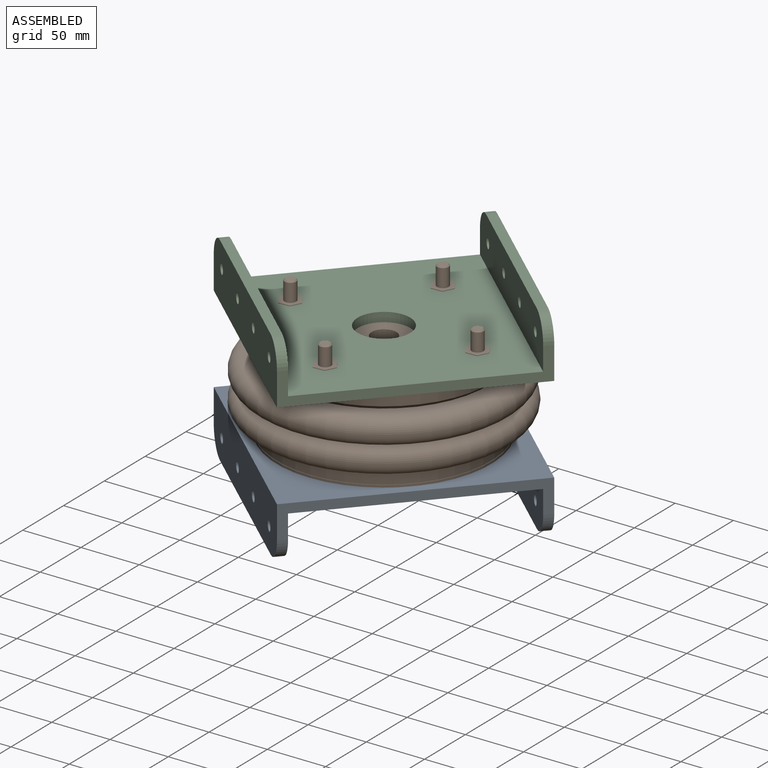
[diagram: assembled view]
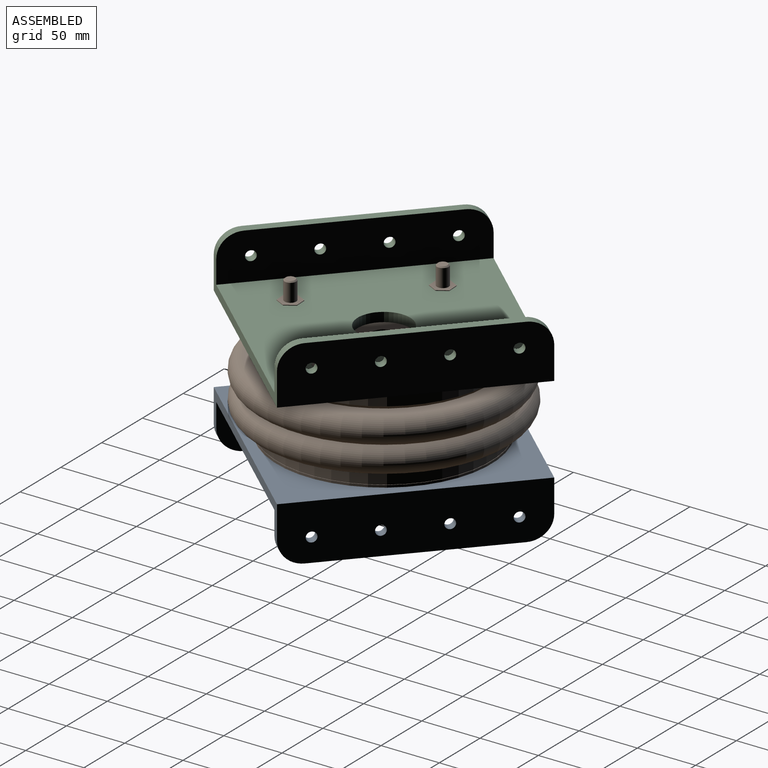
[diagram: assembled view, second angle]
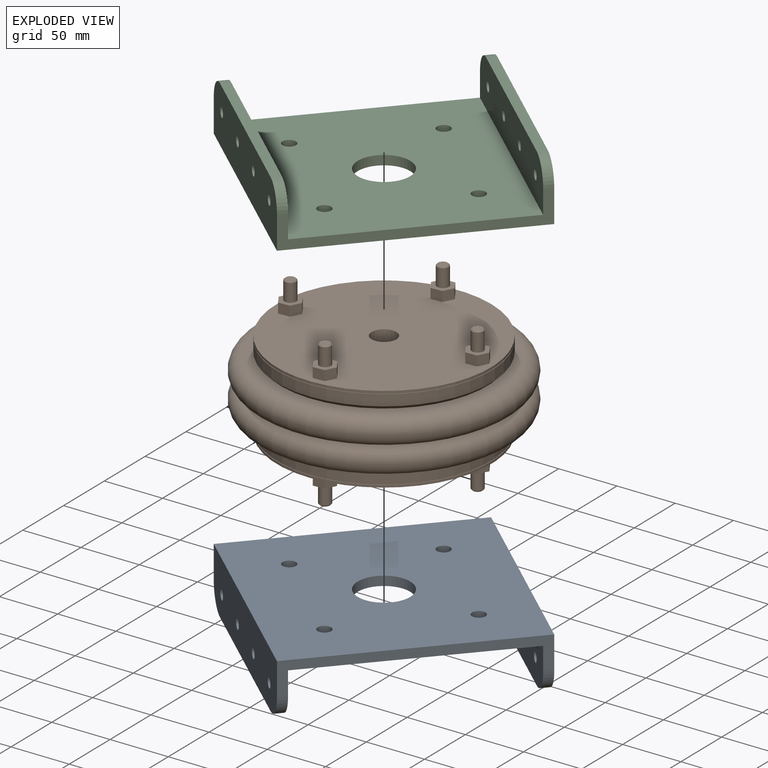
[diagram: exploded view]
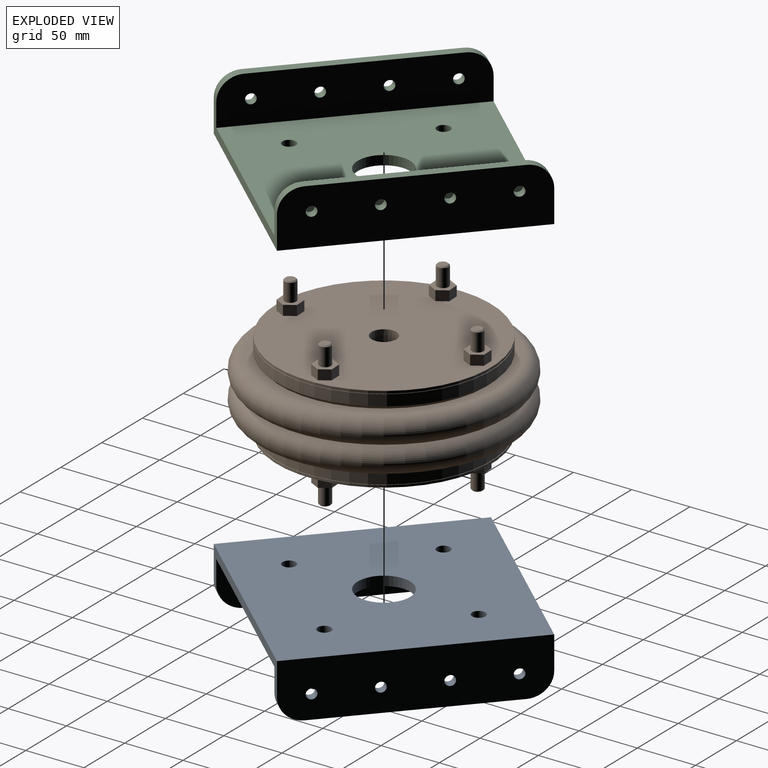
[diagram: exploded view, second angle]
ASSEMBLY  parts=3 mates=2
PART A: 27 faces, bbox 200x200x48 mm
  f0: plane 200x184mm, normal (0,0,1), area 34794.1mm2, adj f2,f4,f13,f21,f22,f23,f24,f25
  f1: plane 200x48mm, normal (0,1,0), area 9201.3mm2, adj f2,f4,f5,f14,f15,f16,f17,f18
  f2: plane 200x28mm, normal (-1,0,0), area 1920mm2, adj f0,f1,f3,f5,f11,f13,f14,f21
  f3: plane 200x48mm, normal (0,-1,0), area 9201.3mm2, adj f2,f4,f5,f6,f7,f8,f9,f10
  f4: plane 200x28mm, normal (1,0,0), area 1920mm2, adj f0,f1,f3,f5,f6,f13,f19,f21
  f5: plane 200x200mm, normal (0,0,-1), area 37994.1mm2, adj f1,f2,f3,f4,f22,f23,f24,f25
  f6: cylinder r=20mm len=20mm, axis (0,-1,0), area 251.3mm2, adj f3,f4,f7,f13
  f7: plane 160x8mm, normal (0,0,1), area 1280mm2, adj f3,f6,f11,f13
  f8: cylinder r=4.25mm len=8.5mm, axis (0,-1,0), area 213.6mm2, adj f3,f13
  f9: cylinder r=4.25mm len=8.5mm, axis (0,-1,0), area 213.6mm2, adj f3,f13
  f10: cylinder r=4.25mm len=8.5mm, axis (0,-1,0), area 213.6mm2, adj f3,f13
  f11: cylinder r=20mm len=20mm, axis (0,-1,0), area 251.3mm2, adj f2,f3,f7,f13
  f12: cylinder r=4.25mm len=8.5mm, axis (0,-1,0), area 213.6mm2, adj f3,f13
  f13: plane 200x40mm, normal (0,1,0), area 7601.3mm2, adj f0,f2,f4,f6,f7,f8,f9,f10
  f14: cylinder r=20mm len=20mm, axis (0,1,0), area 251.3mm2, adj f1,f2,f15,f21
  f15: plane 160x8mm, normal (0,0,1), area 1280mm2, adj f1,f14,f19,f21
  f16: cylinder r=4.25mm len=8.5mm, axis (0,1,0), area 213.6mm2, adj f1,f21
  f17: cylinder r=4.25mm len=8.5mm, axis (0,1,0), area 213.6mm2, adj f1,f21
  f18: cylinder r=4.25mm len=8.5mm, axis (0,1,0), area 213.6mm2, adj f1,f21
  f19: cylinder r=20mm len=20mm, axis (0,1,0), area 251.3mm2, adj f1,f4,f15,f21
  f20: cylinder r=4.25mm len=8.5mm, axis (0,1,0), area 213.6mm2, adj f1,f21
  f21: plane 200x40mm, normal (0,-1,0), area 7601.3mm2, adj f0,f2,f4,f14,f15,f16,f17,f18
  f22: cylinder r=22.5mm len=45mm, axis (0,0,1), area 1131mm2, adj f0,f5
  f23: cylinder r=5.75mm len=11.5mm, axis (0,0,-1), area 289mm2, adj f0,f5
  f24: cylinder r=5.75mm len=11.5mm, axis (0,0,-1), area 289mm2, adj f0,f5
  f25: cylinder r=5.75mm len=11.5mm, axis (0,0,-1), area 289mm2, adj f0,f5
  f26: cylinder r=5.75mm len=11.5mm, axis (0,0,-1), area 289mm2, adj f0,f5
PART B: 106 faces, bbox 238.1x238.1x125 mm
  f0: plane 197.5x197.5mm, normal (0,0,1), area 30635.4mm2, adj f1
  f1: torus R=98.75mm, axis (0,0,-1), area 12673.7mm2, adj f0,f2
  f2: torus R=98.75mm, axis (0,0,-1), area 9432.1mm2, adj f1,f3
  f3: torus R=98.75mm, axis (0,0,-1), area 12673.7mm2, adj f2,f4
  f4: plane 197.5x197.5mm, normal (0,0,-1), area 30385mm2, adj f3,f5
  f5: cylinder r=8.93mm len=17.86mm, axis (0,0,1), area 360.6mm2, adj f4,f6
  f6: plane 20.52x20.52mm, normal (0,0,1), area 80.4mm2, adj f5,f7
  f7: cone r=10.67mm half-angle=1.7deg, axis (0,0,1), area 892.7mm2, adj f6,f8
  f8: plane 184x184mm, normal (0,0,1), area 25231.8mm2, adj f7,f9,f27,f28,f29,f30,f31,f32
  f9: cylinder r=92mm len=184mm, axis (0,0,-1), area 1156.1mm2, adj f8,f10
  f10: plane 184x184mm, normal (0,0,-1), area 288.2mm2, adj f9,f11
  f11: cylinder r=91.5mm len=183mm, axis (0,0,-1), area 287.5mm2, adj f10,f12
  f12: plane 184x184mm, normal (0,0,1), area 288.2mm2, adj f11,f13
  f13: cylinder r=92mm len=184mm, axis (0,0,-1), area 5491.5mm2, adj f12,f14
  f14: cone r=89mm half-angle=45deg, axis (0,0,1), area 2412.5mm2, adj f13,f15
  f15: plane 197.5x197.5mm, normal (0,0,1), area 5750.9mm2, adj f14,f16
  f16: torus R=98.75mm, axis (0,0,-1), area 23519.5mm2, adj f15,f17
  f17: torus R=98.75mm, axis (0,0,-1), area 23519.5mm2, adj f16,f18
  f18: plane 197.5x197.5mm, normal (0,0,-1), area 5750.9mm2, adj f17,f19
  f19: cone r=92mm half-angle=45deg, axis (0,0,-1), area 2412.5mm2, adj f18,f20
  f20: cylinder r=92mm len=184mm, axis (0,0,-1), area 5491.5mm2, adj f19,f21
  f21: plane 184x184mm, normal (0,0,-1), area 288.2mm2, adj f20,f22
  f22: cylinder r=91.5mm len=183mm, axis (0,0,-1), area 287.5mm2, adj f21,f23
  f23: plane 184x184mm, normal (0,0,1), area 288.2mm2, adj f22,f24
  f24: cylinder r=92mm len=184mm, axis (0,0,-1), area 1156.1mm2, adj f23,f25
  f25: plane 184x184mm, normal (0,0,-1), area 25589.3mm2, adj f24,f66,f67,f68,f69,f70,f71,f76
  f26: plane 19.63x17mm, normal (0,0,1), area 171.7mm2, adj f27,f28,f29,f30,f31,f32,f35
  f27: plane 8.5x8.5mm, normal (-0.5,-0.87,0), area 83.4mm2, adj f8,f26,f28,f32
  f28: plane 8.5x8.5mm, normal (0.5,-0.87,0), area 83.4mm2, adj f8,f26,f27,f29
  f29: plane 9.82x8.5mm, normal (1,0,0), area 83.4mm2, adj f8,f26,f28,f30
  f30: plane 8.5x8.5mm, normal (0.5,0.87,0), area 83.4mm2, adj f8,f26,f29,f31
  f31: plane 8.5x8.5mm, normal (-0.5,0.87,0), area 83.4mm2, adj f8,f26,f30,f32
  f32: plane 9.82x8.5mm, normal (-1,0,0), area 83.4mm2, adj f8,f26,f27,f31
  f33: plane 8x8mm, normal (0,0,1), area 50.3mm2, adj f34
  f34: cone r=4mm half-angle=45deg, axis (0,0,-1), area 40mm2, adj f33,f35
  f35: cylinder r=5mm len=15.5mm, axis (0,0,-1), area 486.9mm2, adj f26,f34
  f36: plane 19.63x17mm, normal (0,0,1), area 171.7mm2, adj f37,f38,f39,f40,f41,f42,f45
  f37: plane 8.5x8.5mm, normal (0.5,0.87,0), area 83.4mm2, adj f8,f36,f38,f42
  f38: plane 8.5x8.5mm, normal (-0.5,0.87,0), area 83.4mm2, adj f8,f36,f37,f39
  f39: plane 9.82x8.5mm, normal (-1,0,0), area 83.4mm2, adj f8,f36,f38,f40
  f40: plane 8.5x8.5mm, normal (-0.5,-0.87,0), area 83.4mm2, adj f8,f36,f39,f41
  f41: plane 8.5x8.5mm, normal (0.5,-0.87,0), area 83.4mm2, adj f8,f36,f40,f42
  f42: plane 9.82x8.5mm, normal (1,0,0), area 83.4mm2, adj f8,f36,f37,f41
  f43: plane 8x8mm, normal (0,0,1), area 50.3mm2, adj f44
  f44: cone r=4mm half-angle=45deg, axis (0,0,-1), area 40mm2, adj f43,f45
  f45: cylinder r=5mm len=15.5mm, axis (0,0,-1), area 486.9mm2, adj f36,f44
  f46: plane 19.63x17mm, normal (0,0,1), area 171.7mm2, adj f47,f48,f49,f50,f51,f52,f55
  f47: plane 8.5x8.5mm, normal (-0.5,-0.87,0), area 83.4mm2, adj f8,f46,f48,f52
  f48: plane 8.5x8.5mm, normal (0.5,-0.87,0), area 83.4mm2, adj f8,f46,f47,f49
  f49: plane 9.82x8.5mm, normal (1,0,0), area 83.4mm2, adj f8,f46,f48,f50
  f50: plane 8.5x8.5mm, normal (0.5,0.87,0), area 83.4mm2, adj f8,f46,f49,f51
  f51: plane 8.5x8.5mm, normal (-0.5,0.87,0), area 83.4mm2, adj f8,f46,f50,f52
  f52: plane 9.82x8.5mm, normal (-1,0,0), area 83.4mm2, adj f8,f46,f47,f51
  f53: plane 8x8mm, normal (0,0,1), area 50.3mm2, adj f54
  f54: cone r=4mm half-angle=45deg, axis (0,0,-1), area 40mm2, adj f53,f55
  f55: cylinder r=5mm len=15.5mm, axis (0,0,-1), area 486.9mm2, adj f46,f54
  f56: plane 19.63x17mm, normal (0,0,1), area 171.7mm2, adj f57,f58,f59,f60,f61,f62,f65
  f57: plane 8.5x8.5mm, normal (-0.5,-0.87,0), area 83.4mm2, adj f8,f56,f58,f62
  f58: plane 8.5x8.5mm, normal (0.5,-0.87,0), area 83.4mm2, adj f8,f56,f57,f59
  f59: plane 9.82x8.5mm, normal (1,0,0), area 83.4mm2, adj f8,f56,f58,f60
  f60: plane 8.5x8.5mm, normal (0.5,0.87,0), area 83.4mm2, adj f8,f56,f59,f61
  f61: plane 8.5x8.5mm, normal (-0.5,0.87,0), area 83.4mm2, adj f8,f56,f60,f62
  f62: plane 9.82x8.5mm, normal (-1,0,0), area 83.4mm2, adj f8,f56,f57,f61
  f63: plane 8x8mm, normal (0,0,1), area 50.3mm2, adj f64
  f64: cone r=4mm half-angle=45deg, axis (0,0,-1), area 40mm2, adj f63,f65
  f65: cylinder r=5mm len=15.5mm, axis (0,0,-1), area 486.9mm2, adj f56,f64
  f66: plane 8.5x8.5mm, normal (-0.5,-0.87,0), area 83.4mm2, adj f25,f67,f71,f72
  f67: plane 9.82x8.5mm, normal (-1,0,0), area 83.4mm2, adj f25,f66,f68,f72
  f68: plane 8.5x8.5mm, normal (-0.5,0.87,0), area 83.4mm2, adj f25,f67,f69,f72
  f69: plane 8.5x8.5mm, normal (0.5,0.87,0), area 83.4mm2, adj f25,f68,f70,f72
  f70: plane 9.82x8.5mm, normal (1,0,0), area 83.4mm2, adj f25,f69,f71,f72
  f71: plane 8.5x8.5mm, normal (0.5,-0.87,0), area 83.4mm2, adj f25,f66,f70,f72
  f72: plane 19.63x17mm, normal (0,0,-1), area 171.7mm2, adj f66,f67,f68,f69,f70,f71,f75
  f73: plane 8x8mm, normal (0,0,-1), area 50.3mm2, adj f74
  f74: cone r=5mm half-angle=45deg, axis (0,0,1), area 40mm2, adj f73,f75
  f75: cylinder r=5mm len=15.5mm, axis (0,0,1), area 486.9mm2, adj f72,f74
  f76: plane 8.5x8.5mm, normal (0.5,0.87,0), area 83.4mm2, adj f25,f77,f81,f82
  f77: plane 9.82x8.5mm, normal (1,0,0), area 83.4mm2, adj f25,f76,f78,f82
  f78: plane 8.5x8.5mm, normal (0.5,-0.87,0), area 83.4mm2, adj f25,f77,f79,f82
  f79: plane 8.5x8.5mm, normal (-0.5,-0.87,0), area 83.4mm2, adj f25,f78,f80,f82
  f80: plane 9.82x8.5mm, normal (-1,0,0), area 83.4mm2, adj f25,f79,f81,f82
  f81: plane 8.5x8.5mm, normal (-0.5,0.87,0), area 83.4mm2, adj f25,f76,f80,f82
  f82: plane 19.63x17mm, normal (0,0,-1), area 171.7mm2, adj f76,f77,f78,f79,f80,f81,f85
  f83: plane 8x8mm, normal (0,0,-1), area 50.3mm2, adj f84
  f84: cone r=5mm half-angle=45deg, axis (0,0,1), area 40mm2, adj f83,f85
  f85: cylinder r=5mm len=15.5mm, axis (0,0,1), area 486.9mm2, adj f82,f84
  f86: plane 8.5x8.5mm, normal (-0.5,-0.87,0), area 83.4mm2, adj f25,f87,f91,f92
  f87: plane 9.82x8.5mm, normal (-1,0,0), area 83.4mm2, adj f25,f86,f88,f92
  f88: plane 8.5x8.5mm, normal (-0.5,0.87,0), area 83.4mm2, adj f25,f87,f89,f92
  f89: plane 8.5x8.5mm, normal (0.5,0.87,0), area 83.4mm2, adj f25,f88,f90,f92
  f90: plane 9.82x8.5mm, normal (1,0,0), area 83.4mm2, adj f25,f89,f91,f92
  f91: plane 8.5x8.5mm, normal (0.5,-0.87,0), area 83.4mm2, adj f25,f86,f90,f92
  f92: plane 19.63x17mm, normal (0,0,-1), area 171.7mm2, adj f86,f87,f88,f89,f90,f91,f95
  f93: plane 8x8mm, normal (0,0,-1), area 50.3mm2, adj f94
  f94: cone r=5mm half-angle=45deg, axis (0,0,1), area 40mm2, adj f93,f95
  f95: cylinder r=5mm len=15.5mm, axis (0,0,1), area 486.9mm2, adj f92,f94
  f96: plane 8.5x8.5mm, normal (-0.5,-0.87,0), area 83.4mm2, adj f25,f97,f101,f102
  f97: plane 9.82x8.5mm, normal (-1,0,0), area 83.4mm2, adj f25,f96,f98,f102
  f98: plane 8.5x8.5mm, normal (-0.5,0.87,0), area 83.4mm2, adj f25,f97,f99,f102
  f99: plane 8.5x8.5mm, normal (0.5,0.87,0), area 83.4mm2, adj f25,f98,f100,f102
  f100: plane 9.82x8.5mm, normal (1,0,0), area 83.4mm2, adj f25,f99,f101,f102
  f101: plane 8.5x8.5mm, normal (0.5,-0.87,0), area 83.4mm2, adj f25,f96,f100,f102
  f102: plane 19.63x17mm, normal (0,0,-1), area 171.7mm2, adj f96,f97,f98,f99,f100,f101,f105
  f103: plane 8x8mm, normal (0,0,-1), area 50.3mm2, adj f104
  f104: cone r=5mm half-angle=45deg, axis (0,0,1), area 40mm2, adj f103,f105
  f105: cylinder r=5mm len=15.5mm, axis (0,0,1), area 486.9mm2, adj f102,f104
PART C: same geometry as A
PLACE A rot(axis=(-0.36,-0.93,0),180deg) t=(172.71,26.56,-231.54)mm
PLACE B rot(axis=(0,0,-1),87.2deg) t=(31.47,19.56,-231.54)mm
PLACE C rot(axis=(0,0,-1),42.2deg) t=(24.46,160.81,-156.54)mm
MATE revolute A.f22 <-> B.f1  axis (0,0,1) through (31.47,19.56,-231.54)mm
MATE revolute C.f22 <-> B.f1  axis (0,0,-1) through (31.47,19.56,-156.54)mm
